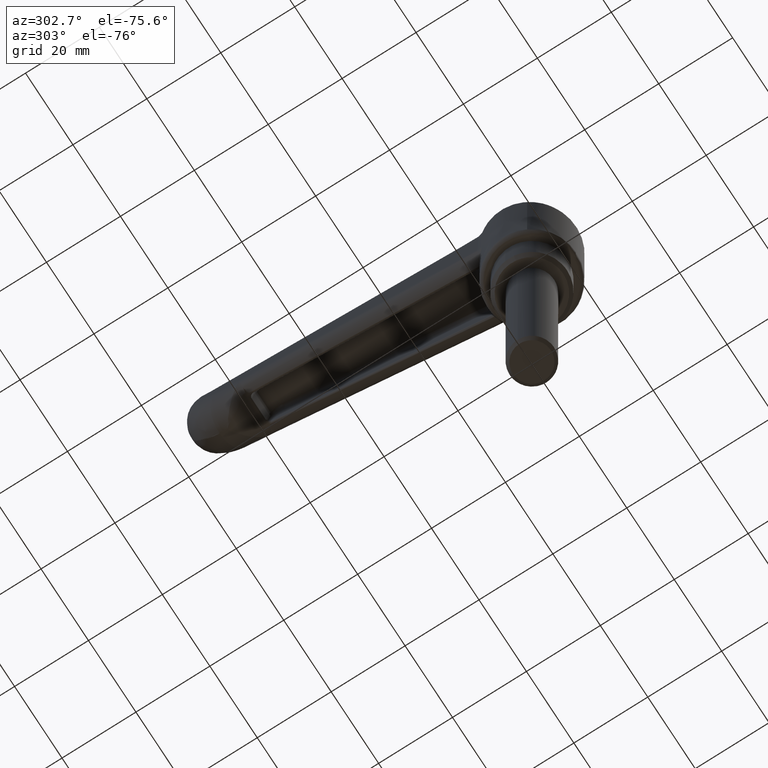
[diagram: clean part render]
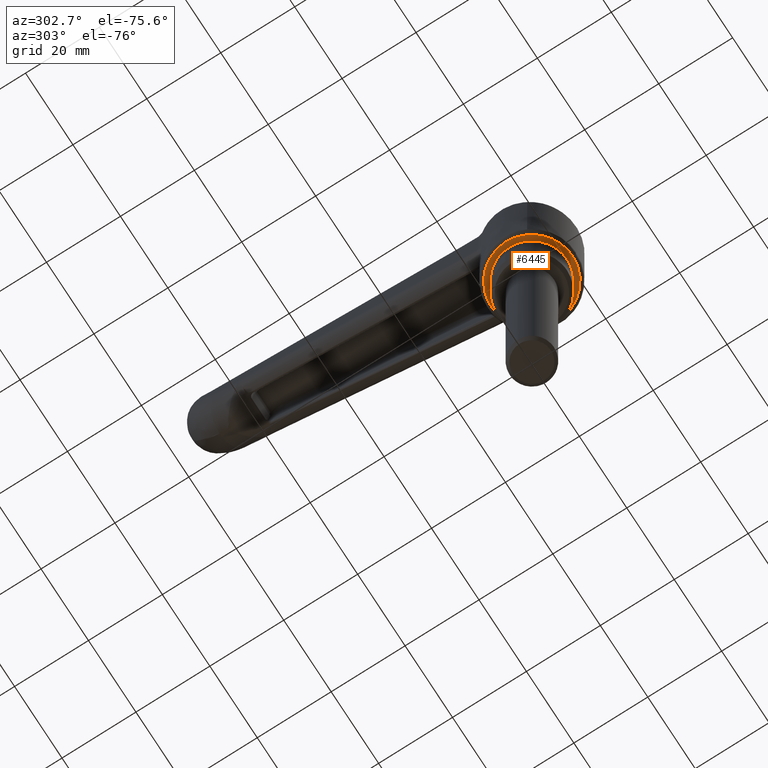
[diagram: same view with one face highlighted and labeled with its STEP entity id]
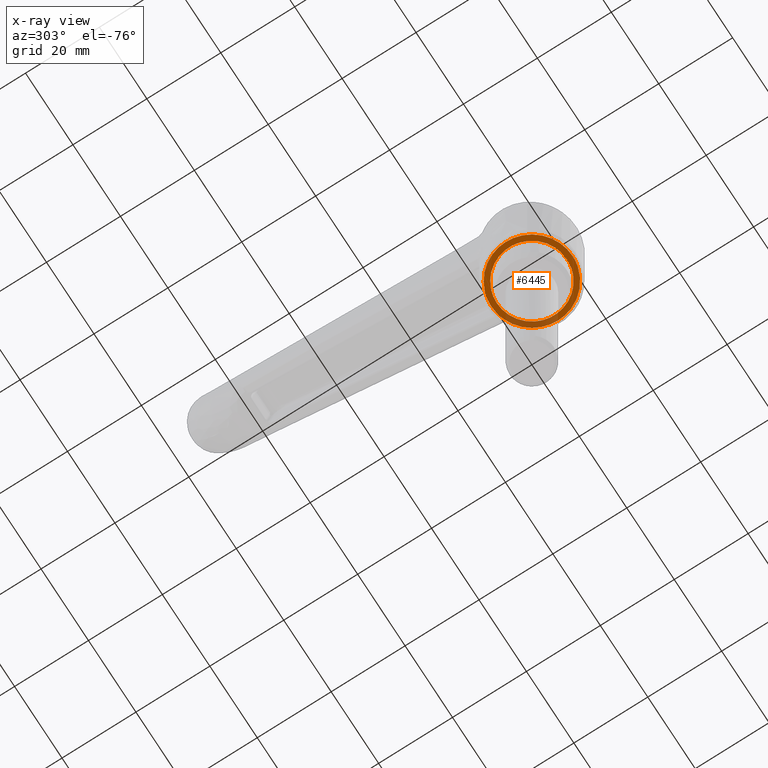
[diagram: x-ray of the same camera — body ghosted, the highlighted face saturated]
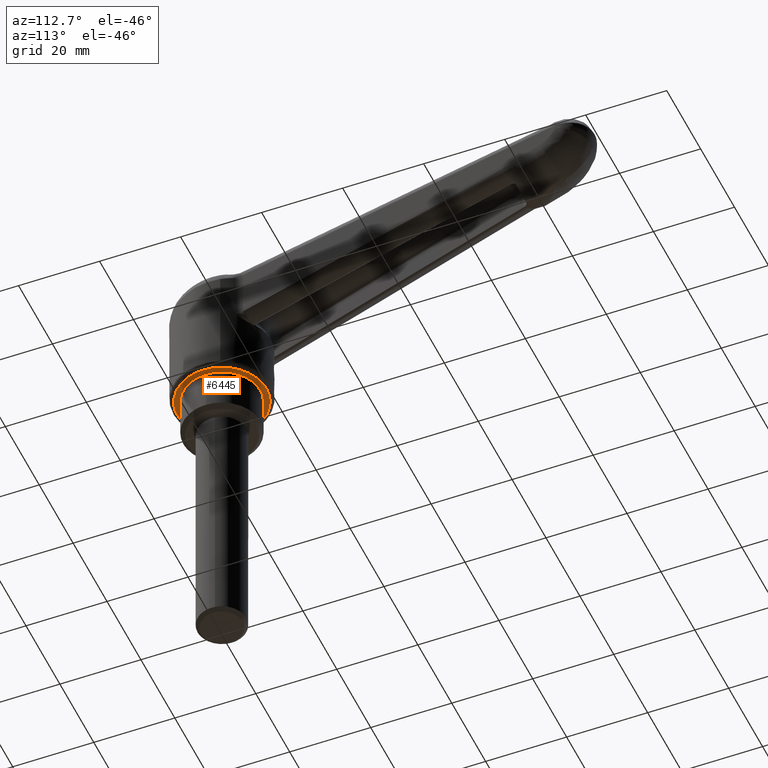
[diagram: same view with one face highlighted and labeled with its STEP entity id]
A machine part, auxiliary view. The second image highlights one B-rep face of the part: STEP entity #6445.
The next image is the same camera in x-ray: the body ghosted, the highlighted face saturated — about 20% of this face is hidden behind the body in this view.
A second angle (auxiliary view) of the same face is appended — the face is thin or edge-on in the first view.
In plain terms, the highlighted face is a freeform B-spline surface patch.
Its self-contained STEP definition (entity closure, byte-faithful):
#1786=CARTESIAN_POINT('',(1.121313283763338,-9.433591920340373,10.999999999999840));
#1787=VERTEX_POINT('',#1786);
#1788=CARTESIAN_POINT('',(-9.500000000000000,0.0,11.0));
#1789=VERTEX_POINT('',#1788);
#1790=CARTESIAN_POINT('',(1.121313283763337,-9.433591920340373,10.999999999999842));
#1791=CARTESIAN_POINT('',(0.562623100813323,-9.500000000000000,11.000000000000005));
#1792=CARTESIAN_POINT('',(0.0,-9.500000000000000,11.0));
#1793=CARTESIAN_POINT('',(-9.500000000000000,-9.500000000000000,11.0));
#1794=CARTESIAN_POINT('',(-9.500000000000000,0.0,11.0));
#1802=(BOUNDED_CURVE()B_SPLINE_CURVE(2,(#1790,#1791,#1792,#1793,#1794),.UNSPECIFIED.,.F.,.U.)B_SPLINE_CURVE_WITH_KNOTS((3,2,3),(0.229562687519462,0.250000000000000,0.500000000000000),.UNSPECIFIED.)CURVE()GEOMETRIC_REPRESENTATION_ITEM()RATIONAL_B_SPLINE_CURVE((0.956027173644556,0.976056199054716,1.0,0.707106781186548,1.0))REPRESENTATION_ITEM(''));
#1803=EDGE_CURVE('',#1787,#1789,#1802,.T.);
#1805=CARTESIAN_POINT('',(-0.579961125736047,9.482280584998261,11.0));
#1806=VERTEX_POINT('',#1805);
#1807=CARTESIAN_POINT('',(-9.500000000000000,0.0,11.0));
#1808=CARTESIAN_POINT('',(-9.500000000000000,8.936707635311613,11.0));
#1809=CARTESIAN_POINT('',(-0.579961125736047,9.482280584998261,10.999999999999996));
#1817=(BOUNDED_CURVE()B_SPLINE_CURVE(2,(#1807,#1808,#1809),.UNSPECIFIED.,.F.,.U.)B_SPLINE_CURVE_WITH_KNOTS((3,3),(0.500000000000000,0.739332962236332),.UNSPECIFIED.)CURVE()GEOMETRIC_REPRESENTATION_ITEM()RATIONAL_B_SPLINE_CURVE((1.0,0.719603993289770,0.976072041661121))REPRESENTATION_ITEM(''));
#1818=EDGE_CURVE('',#1789,#1806,#1817,.T.);
#1885=CARTESIAN_POINT('',(9.500000000000000,0.0,11.0));
#1886=VERTEX_POINT('',#1885);
#1887=CARTESIAN_POINT('',(9.500000000000000,0.0,11.0));
#1888=CARTESIAN_POINT('',(9.499999999999998,-8.437668756112993,11.0));
#1889=CARTESIAN_POINT('',(1.121313283763337,-9.433591920340373,10.999999999999842));
#1897=(BOUNDED_CURVE()B_SPLINE_CURVE(2,(#1887,#1888,#1889),.UNSPECIFIED.,.F.,.U.)B_SPLINE_CURVE_WITH_KNOTS((3,3),(0.0,0.229562687519462),.UNSPECIFIED.)CURVE()GEOMETRIC_REPRESENTATION_ITEM()RATIONAL_B_SPLINE_CURVE((1.0,0.731050582131832,0.956027173644556))REPRESENTATION_ITEM(''));
#1898=EDGE_CURVE('',#1886,#1787,#1897,.T.);
#1932=CARTESIAN_POINT('',(-0.579961125736047,9.482280584998261,10.999999999999998));
#1933=CARTESIAN_POINT('',(-0.290251251491935,9.499999999999998,11.000000000000004));
#1934=CARTESIAN_POINT('',(0.0,9.500000000000000,11.0));
#1935=CARTESIAN_POINT('',(9.500000000000000,9.500000000000000,11.0));
#1936=CARTESIAN_POINT('',(9.500000000000000,0.0,11.0));
#1944=(BOUNDED_CURVE()B_SPLINE_CURVE(2,(#1932,#1933,#1934,#1935,#1936),.UNSPECIFIED.,.F.,.U.)B_SPLINE_CURVE_WITH_KNOTS((3,2,3),(0.739332962236331,0.750000000000000,1.0),.UNSPECIFIED.)CURVE()GEOMETRIC_REPRESENTATION_ITEM()RATIONAL_B_SPLINE_CURVE((0.976072041661119,0.987502787896777,1.0,0.707106781186548,1.0))REPRESENTATION_ITEM(''));
#1945=EDGE_CURVE('',#1806,#1886,#1944,.T.);
#2394=CARTESIAN_POINT('',(11.0,0.0,11.0));
#2395=VERTEX_POINT('',#2394);
#2396=CARTESIAN_POINT('',(-3.886321639220706,-10.290602726134750,11.0));
#2397=VERTEX_POINT('',#2396);
#2398=CARTESIAN_POINT('',(11.0,0.0,11.0));
#2399=CARTESIAN_POINT('',(11.0,-11.0,11.0));
#2400=CARTESIAN_POINT('',(0.0,-11.0,11.0));
#2401=CARTESIAN_POINT('',(-2.007906424876474,-10.999999999999996,10.999999999999996));
#2402=CARTESIAN_POINT('',(-3.886321639220706,-10.290602726134749,11.0));
#2410=(BOUNDED_CURVE()B_SPLINE_CURVE(2,(#2398,#2399,#2400,#2401,#2402),.UNSPECIFIED.,.F.,.U.)B_SPLINE_CURVE_WITH_KNOTS((3,2,3),(0.0,0.250000000000000,0.310000000010100),.UNSPECIFIED.)CURVE()GEOMETRIC_REPRESENTATION_ITEM()RATIONAL_B_SPLINE_CURVE((1.0,0.707106781186548,1.0,0.929705627472939,0.893152553764546))REPRESENTATION_ITEM(''));
#2411=EDGE_CURVE('',#2395,#2397,#2410,.T.);
#2413=CARTESIAN_POINT('',(-11.000000001539631,3.767505E-016,11.0));
#2414=VERTEX_POINT('',#2413);
#2415=CARTESIAN_POINT('',(-11.000000001539631,3.767505E-016,11.0));
#2416=CARTESIAN_POINT('',(-11.0,11.0,11.0));
#2417=CARTESIAN_POINT('',(0.0,11.0,11.0));
#2418=CARTESIAN_POINT('',(11.0,11.0,11.0));
#2419=CARTESIAN_POINT('',(11.0,0.0,11.0));
#2427=(BOUNDED_CURVE()B_SPLINE_CURVE(2,(#2415,#2416,#2417,#2418,#2419),.UNSPECIFIED.,.F.,.U.)B_SPLINE_CURVE_WITH_KNOTS((3,2,3),(0.500000000000000,0.750000000000000,1.0),.UNSPECIFIED.)CURVE()GEOMETRIC_REPRESENTATION_ITEM()RATIONAL_B_SPLINE_CURVE((1.0,0.707106781186548,1.0,0.707106781186548,1.0))REPRESENTATION_ITEM(''));
#2428=EDGE_CURVE('',#2414,#2395,#2427,.T.);
#2480=CARTESIAN_POINT('',(-3.886321639220706,-10.290602726134747,11.0));
#2481=CARTESIAN_POINT('',(-11.000000000000002,-7.604069870705429,11.000000000000002));
#2482=CARTESIAN_POINT('',(-11.000000001539631,3.767505E-016,11.0));
#2490=(BOUNDED_CURVE()B_SPLINE_CURVE(2,(#2480,#2481,#2482),.UNSPECIFIED.,.F.,.U.)B_SPLINE_CURVE_WITH_KNOTS((3,3),(0.310000000010100,0.500000000000000),.UNSPECIFIED.)CURVE()GEOMETRIC_REPRESENTATION_ITEM()RATIONAL_B_SPLINE_CURVE((0.893152553764546,0.777401153713609,1.0))REPRESENTATION_ITEM(''));
#2491=EDGE_CURVE('',#2397,#2414,#2490,.T.);
#6429=CARTESIAN_POINT('',(-12.098899958976260,-12.095211202241940,11.0));
#6430=CARTESIAN_POINT('',(12.098900547522620,-12.095211202241940,11.0));
#6431=CARTESIAN_POINT('',(-12.098899958976260,12.098725059650480,11.0));
#6432=CARTESIAN_POINT('',(12.098900547522620,12.098725059650480,11.0));
#6433=B_SPLINE_SURFACE_WITH_KNOTS('',1,1,((#6429,#6431),(#6430,#6432)),.UNSPECIFIED.,.F.,.F.,.U.,(2,2),(2,2),(0.0,24.197800506498879),(0.0,24.193936261892421),.UNSPECIFIED.);
#6434=ORIENTED_EDGE('',*,*,#2411,.T.);
#6435=ORIENTED_EDGE('',*,*,#2491,.T.);
#6436=ORIENTED_EDGE('',*,*,#2428,.T.);
#6437=EDGE_LOOP('',(#6434,#6435,#6436));
#6438=FACE_OUTER_BOUND('',#6437,.T.);
#6439=ORIENTED_EDGE('',*,*,#1818,.F.);
#6440=ORIENTED_EDGE('',*,*,#1803,.F.);
#6441=ORIENTED_EDGE('',*,*,#1898,.F.);
#6442=ORIENTED_EDGE('',*,*,#1945,.F.);
#6443=EDGE_LOOP('',(#6439,#6440,#6441,#6442));
#6444=FACE_BOUND('',#6443,.T.);
#6445=ADVANCED_FACE('',(#6438,#6444),#6433,.F.);